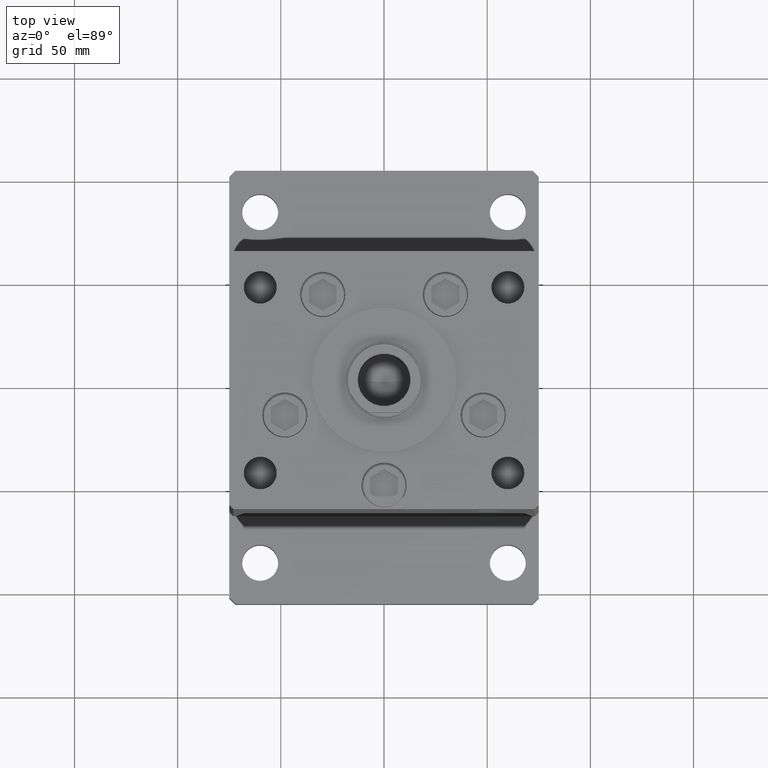
[diagram: clean part render]
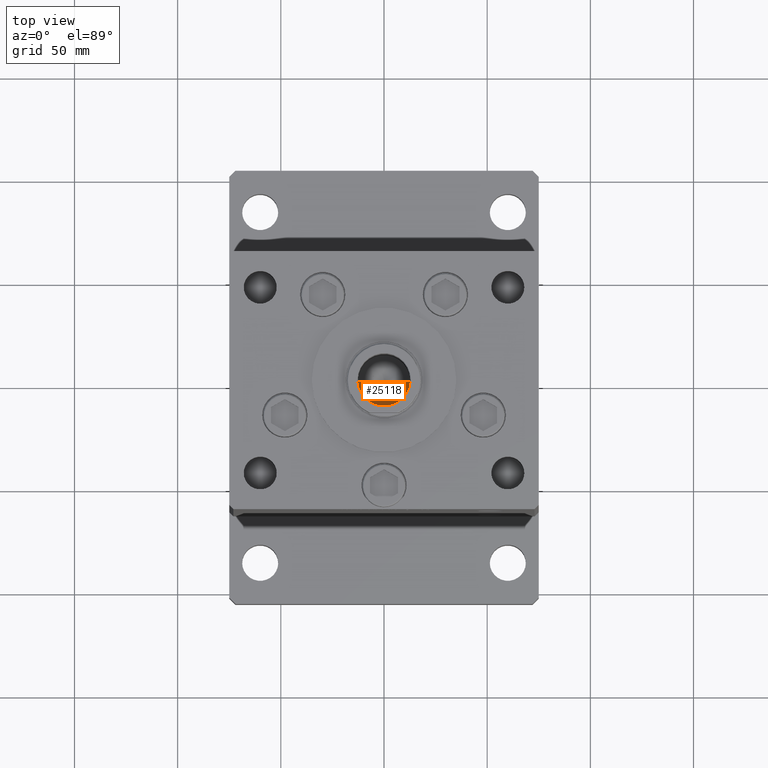
[diagram: same view with one face highlighted and labeled with its STEP entity id]
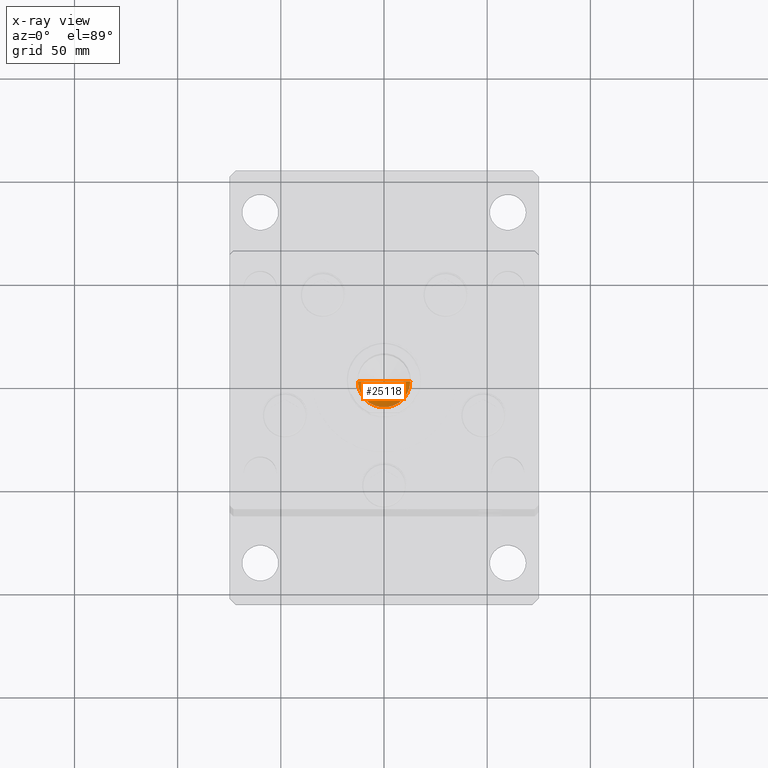
[diagram: x-ray of the same camera — body ghosted, the highlighted face saturated]
A machine part, top view. The second image highlights one B-rep face of the part: STEP entity #25118.
The next image is the same camera in x-ray: the body ghosted, the highlighted face saturated — about 8% of this face is hidden behind the body in this view.
In plain terms, the highlighted conical surface has half-angle 59 deg.
Its self-contained STEP definition (entity closure, byte-faithful):
#3963 = CARTESIAN_POINT ( 'NONE',  ( 12.74999999999999112, 0.000000000000000000, 137.5000000000000000 ) ) ;
#7339 = DIRECTION ( 'NONE',  ( -0.000000000000000000, -0.000000000000000000, 1.000000000000000000 ) ) ;
#8399 = CARTESIAN_POINT ( 'NONE',  ( -1.307202896762960287E-14, 0.000000000000000000, 129.8390271073986355 ) ) ;
#8838 = ORIENTED_EDGE ( 'NONE', *, *, #9801, .T. ) ;
#9595 = CARTESIAN_POINT ( 'NONE',  ( 12.74999999999999112, 0.000000000000000000, 137.5000000000000000 ) ) ;
#9801 = EDGE_CURVE ( 'NONE', #22889, #31950, #18883, .T. ) ;
#10307 = VECTOR ( 'NONE', #17983, 1000.000000000000114 ) ;
#10610 = CARTESIAN_POINT ( 'NONE',  ( 0.000000000000000000, 0.000000000000000000, 137.5000000000000000 ) ) ;
#10944 = CONICAL_SURFACE ( 'NONE', #41232, 12.74999999999999112, 1.029744258676655200 ) ;
#11415 = DIRECTION ( 'NONE',  ( 1.000000000000000000, 0.000000000000000000, 0.000000000000000000 ) ) ;
#16499 = ORIENTED_EDGE ( 'NONE', *, *, #31610, .F. ) ;
#17983 = DIRECTION ( 'NONE',  ( 0.8571673007021125557, 0.000000000000000000, 0.5150380749100536004 ) ) ;
#18618 = DIRECTION ( 'NONE',  ( -0.8571673007021125557, 1.049727191138618942E-16, 0.5150380749100536004 ) ) ;
#18883 = LINE ( 'NONE', #43557, #51113 ) ;
#19528 = CARTESIAN_POINT ( 'NONE',  ( -12.74999999999999112, 1.561424668912874125E-15, 137.5000000000000000 ) ) ;
#22889 = VERTEX_POINT ( 'NONE', #8399 ) ;
#25118 = ADVANCED_FACE ( 'NONE', ( #48289 ), #10944, .F. ) ;
#26849 = AXIS2_PLACEMENT_3D ( 'NONE', #51898, #43247, #43781 ) ;
#31610 = EDGE_CURVE ( 'NONE', #22889, #35379, #39395, .T. ) ;
#31950 = VERTEX_POINT ( 'NONE', #19528 ) ;
#35379 = VERTEX_POINT ( 'NONE', #3963 ) ;
#37093 = ORIENTED_EDGE ( 'NONE', *, *, #41048, .T. ) ;
#39395 = LINE ( 'NONE', #9595, #10307 ) ;
#41048 = EDGE_CURVE ( 'NONE', #31950, #35379, #44178, .T. ) ;
#41232 = AXIS2_PLACEMENT_3D ( 'NONE', #10610, #7339, #11415 ) ;
#42906 = EDGE_LOOP ( 'NONE', ( #16499, #8838, #37093 ) ) ;
#43247 = DIRECTION ( 'NONE',  ( -0.000000000000000000, -0.000000000000000000, 1.000000000000000000 ) ) ;
#43557 = CARTESIAN_POINT ( 'NONE',  ( -12.74999999999999112, 1.561424668912874125E-15, 137.5000000000000000 ) ) ;
#43781 = DIRECTION ( 'NONE',  ( 1.000000000000000000, 0.000000000000000000, 0.000000000000000000 ) ) ;
#44178 = CIRCLE ( 'NONE', #26849, 12.74999999999999112 ) ;
#48289 = FACE_OUTER_BOUND ( 'NONE', #42906, .T. ) ;
#51113 = VECTOR ( 'NONE', #18618, 1000.000000000000114 ) ;
#51898 = CARTESIAN_POINT ( 'NONE',  ( 0.000000000000000000, 0.000000000000000000, 137.5000000000000000 ) ) ;